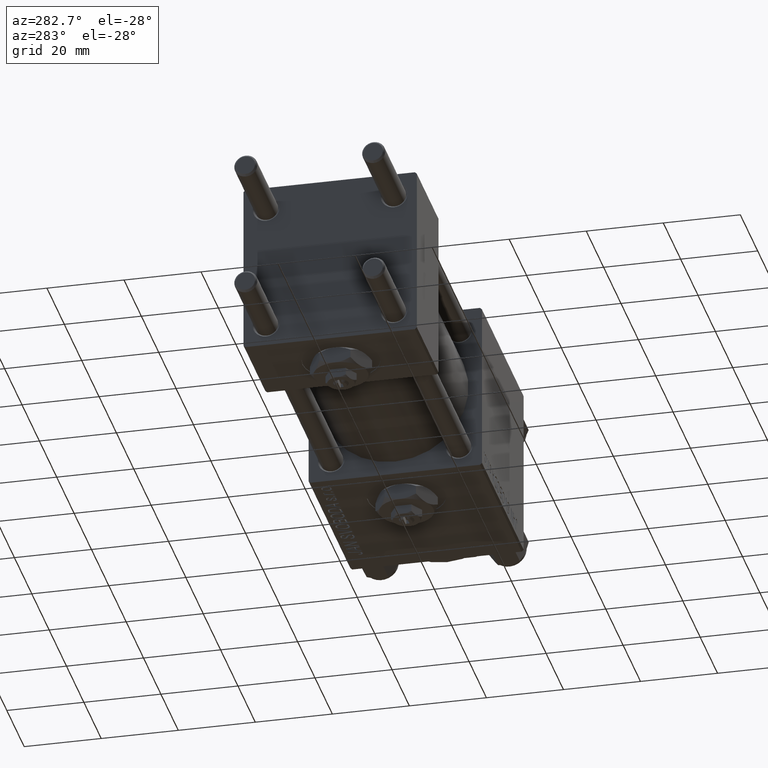
[diagram: clean part render]
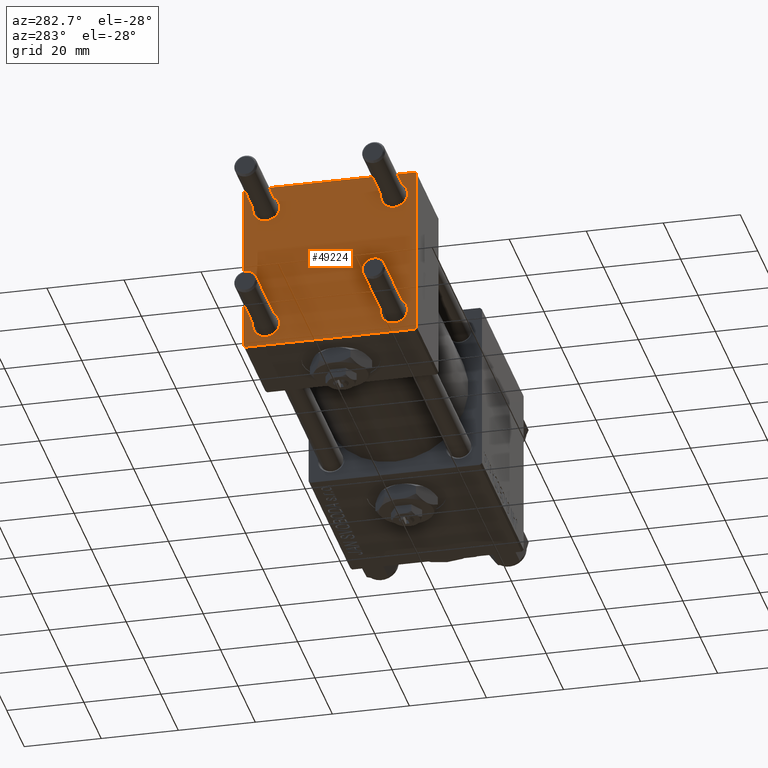
[diagram: same view with one face highlighted and labeled with its STEP entity id]
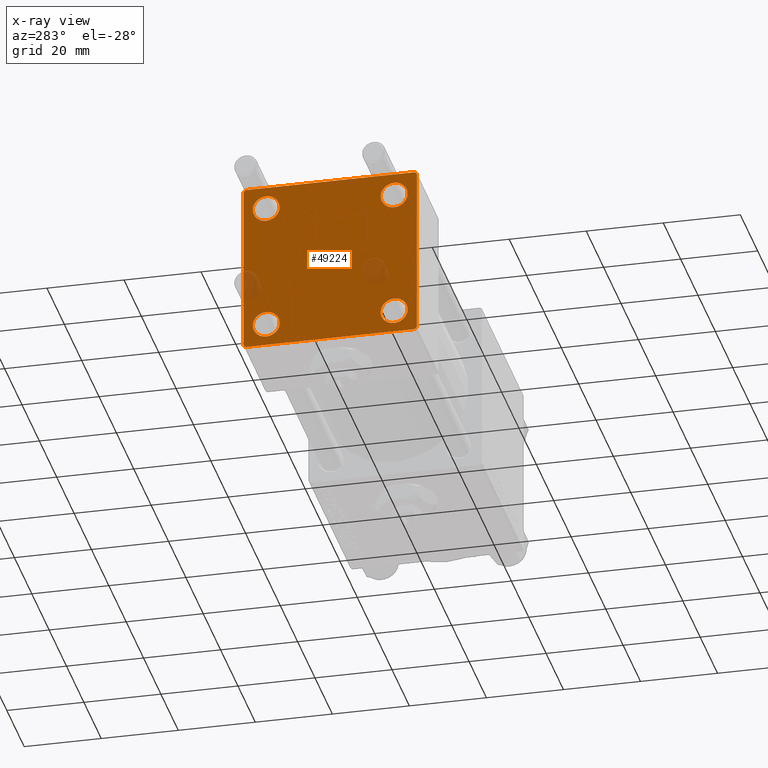
[diagram: x-ray of the same camera — body ghosted, the highlighted face saturated]
A machine part, auxiliary view. The second image highlights one B-rep face of the part: STEP entity #49224.
The next image is the same camera in x-ray: the body ghosted, the highlighted face saturated — about 4% of this face is hidden behind the body in this view.
In plain terms, the highlighted planar face has unit normal (-1, 0, 0).
Its self-contained STEP definition (entity closure, byte-faithful):
#23 = LINE ( 'NONE', #43976, #32634 ) ;
#133 = EDGE_LOOP ( 'NONE', ( #25173, #6282 ) ) ;
#413 = LINE ( 'NONE', #4363, #30988 ) ;
#447 = EDGE_CURVE ( 'NONE', #14596, #5556, #43361, .T. ) ;
#892 = AXIS2_PLACEMENT_3D ( 'NONE', #17188, #32455, #45087 ) ;
#947 = DIRECTION ( 'NONE',  ( 0.000000000000000000, -1.000000000000000000, -7.709882115452476934E-17 ) ) ;
#1204 = CARTESIAN_POINT ( 'NONE',  ( 0.000000000000000000, 22.50000000000000000, 22.50000000000000355 ) ) ;
#1450 = LINE ( 'NONE', #1204, #16965 ) ;
#1567 = DIRECTION ( 'NONE',  ( 1.000000000000000000, -0.000000000000000000, 0.000000000000000000 ) ) ;
#1657 = DIRECTION ( 'NONE',  ( 1.000000000000000000, -0.000000000000000000, 0.000000000000000000 ) ) ;
#2090 = CARTESIAN_POINT ( 'NONE',  ( 0.000000000000000000, 16.59999999999999787, 16.60000000000000497 ) ) ;
#2434 = DIRECTION ( 'NONE',  ( 1.000000000000000000, -0.000000000000000000, 0.000000000000000000 ) ) ;
#2527 = VERTEX_POINT ( 'NONE', #22155 ) ;
#3516 = ORIENTED_EDGE ( 'NONE', *, *, #46696, .T. ) ;
#3598 = DIRECTION ( 'NONE',  ( 1.000000000000000000, -0.000000000000000000, 0.000000000000000000 ) ) ;
#3715 = ORIENTED_EDGE ( 'NONE', *, *, #18187, .T. ) ;
#3819 = DIRECTION ( 'NONE',  ( -0.000000000000000000, -0.7071067811865426878, -0.7071067811865524577 ) ) ;
#4242 = EDGE_CURVE ( 'NONE', #44555, #6875, #21646, .T. ) ;
#4363 = CARTESIAN_POINT ( 'NONE',  ( 0.000000000000000000, 22.24999999999999645, 22.24999999999999645 ) ) ;
#4469 = CARTESIAN_POINT ( 'NONE',  ( 0.000000000000000000, 16.59999999999999787, 20.10000000000000142 ) ) ;
#4674 = CARTESIAN_POINT ( 'NONE',  ( 0.000000000000000000, 16.59999999999999787, -16.60000000000000497 ) ) ;
#5556 = VERTEX_POINT ( 'NONE', #42246 ) ;
#6102 = VECTOR ( 'NONE', #41949, 1000.000000000000000 ) ;
#6150 = LINE ( 'NONE', #22181, #37958 ) ;
#6282 = ORIENTED_EDGE ( 'NONE', *, *, #14732, .T. ) ;
#6399 = DIRECTION ( 'NONE',  ( 0.000000000000000000, -1.000000000000000000, -2.312964634635742957E-16 ) ) ;
#6554 = AXIS2_PLACEMENT_3D ( 'NONE', #51106, #2434, #39258 ) ;
#6875 = VERTEX_POINT ( 'NONE', #22944 ) ;
#7020 = CARTESIAN_POINT ( 'NONE',  ( 0.000000000000000000, 21.99999999999999289, -22.49999999999999645 ) ) ;
#8121 = FACE_BOUND ( 'NONE', #48248, .T. ) ;
#8485 = EDGE_LOOP ( 'NONE', ( #30654, #25627 ) ) ;
#8886 = DIRECTION ( 'NONE',  ( 0.000000000000000000, 0.000000000000000000, 1.000000000000000000 ) ) ;
#9310 = DIRECTION ( 'NONE',  ( 0.000000000000000000, 0.000000000000000000, 1.000000000000000000 ) ) ;
#9316 = VERTEX_POINT ( 'NONE', #29440 ) ;
#10493 = EDGE_CURVE ( 'NONE', #37804, #51012, #413, .T. ) ;
#10728 = DIRECTION ( 'NONE',  ( 0.000000000000000000, 0.000000000000000000, 1.000000000000000000 ) ) ;
#12014 = DIRECTION ( 'NONE',  ( 0.000000000000000000, 0.000000000000000000, 1.000000000000000000 ) ) ;
#12524 = ORIENTED_EDGE ( 'NONE', *, *, #41727, .T. ) ;
#12860 = DIRECTION ( 'NONE',  ( -0.000000000000000000, 0.000000000000000000, 1.000000000000000000 ) ) ;
#13235 = AXIS2_PLACEMENT_3D ( 'NONE', #14929, #34438, #10728 ) ;
#13829 = ORIENTED_EDGE ( 'NONE', *, *, #49773, .T. ) ;
#13868 = DIRECTION ( 'NONE',  ( 0.000000000000000000, 0.000000000000000000, -1.000000000000000000 ) ) ;
#14495 = CARTESIAN_POINT ( 'NONE',  ( 0.000000000000000000, -22.50000000000000000, 22.00000000000000000 ) ) ;
#14596 = VERTEX_POINT ( 'NONE', #4469 ) ;
#14732 = EDGE_CURVE ( 'NONE', #2527, #34606, #16590, .T. ) ;
#14929 = CARTESIAN_POINT ( 'NONE',  ( 0.000000000000000000, -16.59999999999999076, 16.60000000000000853 ) ) ;
#15185 = CARTESIAN_POINT ( 'NONE',  ( 0.000000000000000000, 16.59999999999999787, -16.60000000000000497 ) ) ;
#16015 = CIRCLE ( 'NONE', #892, 3.499999999999996003 ) ;
#16029 = VERTEX_POINT ( 'NONE', #44597 ) ;
#16086 = VECTOR ( 'NONE', #3819, 1000.000000000000000 ) ;
#16457 = DIRECTION ( 'NONE',  ( 0.000000000000000000, 0.7071067811865474617, -0.7071067811865474617 ) ) ;
#16543 = FACE_BOUND ( 'NONE', #8485, .T. ) ;
#16590 = CIRCLE ( 'NONE', #19078, 3.499999999999996003 ) ;
#16646 = VERTEX_POINT ( 'NONE', #23540 ) ;
#16965 = VECTOR ( 'NONE', #947, 1000.000000000000000 ) ;
#17074 = CARTESIAN_POINT ( 'NONE',  ( 0.000000000000000000, 0.000000000000000000, 0.000000000000000000 ) ) ;
#17188 = CARTESIAN_POINT ( 'NONE',  ( 0.000000000000000000, -16.59999999999999076, 16.60000000000000853 ) ) ;
#17525 = CARTESIAN_POINT ( 'NONE',  ( 0.000000000000000000, 16.59999999999999787, 16.60000000000000497 ) ) ;
#17594 = AXIS2_PLACEMENT_3D ( 'NONE', #17525, #33329, #20695 ) ;
#17818 = EDGE_CURVE ( 'NONE', #40522, #16029, #23, .T. ) ;
#18185 = CARTESIAN_POINT ( 'NONE',  ( 0.000000000000000000, -16.59999999999999076, 20.10000000000000853 ) ) ;
#18187 = EDGE_CURVE ( 'NONE', #51012, #31360, #32598, .T. ) ;
#19078 = AXIS2_PLACEMENT_3D ( 'NONE', #15185, #3598, #12014 ) ;
#19232 = DIRECTION ( 'NONE',  ( -0.000000000000000000, 0.7071067811865525687, 0.7071067811865425767 ) ) ;
#19616 = EDGE_CURVE ( 'NONE', #45000, #16646, #25792, .T. ) ;
#20336 = ORIENTED_EDGE ( 'NONE', *, *, #10493, .T. ) ;
#20695 = DIRECTION ( 'NONE',  ( 0.000000000000000000, 0.000000000000000000, 1.000000000000000000 ) ) ;
#21350 = EDGE_LOOP ( 'NONE', ( #13829, #46740 ) ) ;
#21512 = EDGE_CURVE ( 'NONE', #40522, #9316, #42352, .T. ) ;
#21646 = CIRCLE ( 'NONE', #6554, 3.499999999999996003 ) ;
#21683 = CARTESIAN_POINT ( 'NONE',  ( 0.000000000000000000, 22.50000000000000000, 21.99999999999999645 ) ) ;
#22071 = CARTESIAN_POINT ( 'NONE',  ( 0.000000000000000000, 16.59999999999999787, -13.10000000000000675 ) ) ;
#22155 = CARTESIAN_POINT ( 'NONE',  ( 0.000000000000000000, 16.59999999999999787, -20.10000000000000142 ) ) ;
#22181 = CARTESIAN_POINT ( 'NONE',  ( 0.000000000000000000, 22.50000000000000000, -22.49999999999999645 ) ) ;
#22625 = VERTEX_POINT ( 'NONE', #7020 ) ;
#22944 = CARTESIAN_POINT ( 'NONE',  ( 0.000000000000000000, -16.59999999999999076, -13.10000000000001030 ) ) ;
#23540 = CARTESIAN_POINT ( 'NONE',  ( 0.000000000000000000, -16.59999999999999076, 13.10000000000001030 ) ) ;
#23651 = EDGE_CURVE ( 'NONE', #5556, #14596, #31854, .T. ) ;
#24099 = CARTESIAN_POINT ( 'NONE',  ( 0.000000000000000000, 21.99999999999999289, 22.50000000000000355 ) ) ;
#25173 = ORIENTED_EDGE ( 'NONE', *, *, #33633, .T. ) ;
#25570 = ORIENTED_EDGE ( 'NONE', *, *, #21512, .F. ) ;
#25627 = ORIENTED_EDGE ( 'NONE', *, *, #23651, .T. ) ;
#25697 = AXIS2_PLACEMENT_3D ( 'NONE', #2090, #1567, #45022 ) ;
#25792 = CIRCLE ( 'NONE', #13235, 3.499999999999996003 ) ;
#25892 = CARTESIAN_POINT ( 'NONE',  ( 0.000000000000000000, -22.25000000000014566, -22.24999999999984013 ) ) ;
#26462 = VERTEX_POINT ( 'NONE', #33628 ) ;
#27027 = CIRCLE ( 'NONE', #27858, 3.499999999999996003 ) ;
#27858 = AXIS2_PLACEMENT_3D ( 'NONE', #4674, #28339, #8886 ) ;
#27900 = AXIS2_PLACEMENT_3D ( 'NONE', #17074, #40232, #12860 ) ;
#28339 = DIRECTION ( 'NONE',  ( 1.000000000000000000, -0.000000000000000000, 0.000000000000000000 ) ) ;
#28792 = EDGE_CURVE ( 'NONE', #31360, #22625, #47020, .T. ) ;
#29440 = CARTESIAN_POINT ( 'NONE',  ( 0.000000000000000000, -22.50000000000000000, -21.99999999999997158 ) ) ;
#30178 = CARTESIAN_POINT ( 'NONE',  ( 0.000000000000000000, 22.50000000000000000, 22.50000000000000355 ) ) ;
#30654 = ORIENTED_EDGE ( 'NONE', *, *, #447, .T. ) ;
#30988 = VECTOR ( 'NONE', #16457, 1000.000000000000114 ) ;
#31360 = VERTEX_POINT ( 'NONE', #49068 ) ;
#31854 = CIRCLE ( 'NONE', #17594, 3.499999999999996003 ) ;
#32455 = DIRECTION ( 'NONE',  ( 1.000000000000000000, -0.000000000000000000, 0.000000000000000000 ) ) ;
#32543 = ORIENTED_EDGE ( 'NONE', *, *, #17818, .T. ) ;
#32598 = LINE ( 'NONE', #30178, #38410 ) ;
#32634 = VECTOR ( 'NONE', #19232, 999.9999999999998863 ) ;
#33329 = DIRECTION ( 'NONE',  ( 1.000000000000000000, -0.000000000000000000, 0.000000000000000000 ) ) ;
#33628 = CARTESIAN_POINT ( 'NONE',  ( 0.000000000000000000, -21.99999999999997158, -22.50000000000000711 ) ) ;
#33633 = EDGE_CURVE ( 'NONE', #34606, #2527, #27027, .T. ) ;
#34438 = DIRECTION ( 'NONE',  ( 1.000000000000000000, -0.000000000000000000, 0.000000000000000000 ) ) ;
#34606 = VERTEX_POINT ( 'NONE', #22071 ) ;
#35175 = VECTOR ( 'NONE', #42858, 1000.000000000000000 ) ;
#37235 = CARTESIAN_POINT ( 'NONE',  ( 0.000000000000000000, -16.59999999999999076, -20.10000000000000497 ) ) ;
#37804 = VERTEX_POINT ( 'NONE', #24099 ) ;
#37958 = VECTOR ( 'NONE', #6399, 1000.000000000000000 ) ;
#38410 = VECTOR ( 'NONE', #13868, 1000.000000000000000 ) ;
#39258 = DIRECTION ( 'NONE',  ( 0.000000000000000000, 0.000000000000000000, 1.000000000000000000 ) ) ;
#40232 = DIRECTION ( 'NONE',  ( -1.000000000000000000, 0.000000000000000000, -0.000000000000000000 ) ) ;
#40522 = VERTEX_POINT ( 'NONE', #14495 ) ;
#41147 = CARTESIAN_POINT ( 'NONE',  ( 0.000000000000000000, -16.59999999999999076, -16.60000000000000853 ) ) ;
#41727 = EDGE_CURVE ( 'NONE', #16646, #45000, #16015, .T. ) ;
#41949 = DIRECTION ( 'NONE',  ( 0.000000000000000000, -0.7071067811865426878, 0.7071067811865524577 ) ) ;
#42246 = CARTESIAN_POINT ( 'NONE',  ( 0.000000000000000000, 16.59999999999999787, 13.10000000000000675 ) ) ;
#42352 = LINE ( 'NONE', #42602, #35175 ) ;
#42520 = ORIENTED_EDGE ( 'NONE', *, *, #48775, .F. ) ;
#42602 = CARTESIAN_POINT ( 'NONE',  ( 0.000000000000000000, -22.50000000000000000, 22.50000000000000000 ) ) ;
#42691 = ORIENTED_EDGE ( 'NONE', *, *, #28792, .T. ) ;
#42858 = DIRECTION ( 'NONE',  ( 0.000000000000000000, 0.000000000000000000, -1.000000000000000000 ) ) ;
#43361 = CIRCLE ( 'NONE', #25697, 3.499999999999996003 ) ;
#43879 = CIRCLE ( 'NONE', #51425, 3.499999999999996003 ) ;
#43976 = CARTESIAN_POINT ( 'NONE',  ( -0.000000000000000000, -22.24999999999984013, 22.25000000000015277 ) ) ;
#44176 = PLANE ( 'NONE',  #27900 ) ;
#44555 = VERTEX_POINT ( 'NONE', #37235 ) ;
#44597 = CARTESIAN_POINT ( 'NONE',  ( 0.000000000000000000, -21.99999999999997868, 22.50000000000000000 ) ) ;
#44711 = EDGE_CURVE ( 'NONE', #22625, #26462, #6150, .T. ) ;
#44979 = FACE_OUTER_BOUND ( 'NONE', #49180, .T. ) ;
#45000 = VERTEX_POINT ( 'NONE', #18185 ) ;
#45022 = DIRECTION ( 'NONE',  ( 0.000000000000000000, 0.000000000000000000, 1.000000000000000000 ) ) ;
#45087 = DIRECTION ( 'NONE',  ( 0.000000000000000000, 0.000000000000000000, 1.000000000000000000 ) ) ;
#45233 = FACE_BOUND ( 'NONE', #133, .T. ) ;
#45921 = LINE ( 'NONE', #25892, #6102 ) ;
#46696 = EDGE_CURVE ( 'NONE', #26462, #9316, #45921, .T. ) ;
#46740 = ORIENTED_EDGE ( 'NONE', *, *, #4242, .T. ) ;
#47020 = LINE ( 'NONE', #47533, #16086 ) ;
#47533 = CARTESIAN_POINT ( 'NONE',  ( 0.000000000000000000, 22.25000000000014566, -22.24999999999984013 ) ) ;
#48142 = FACE_BOUND ( 'NONE', #21350, .T. ) ;
#48248 = EDGE_LOOP ( 'NONE', ( #50492, #12524 ) ) ;
#48433 = ORIENTED_EDGE ( 'NONE', *, *, #44711, .T. ) ;
#48775 = EDGE_CURVE ( 'NONE', #37804, #16029, #1450, .T. ) ;
#49068 = CARTESIAN_POINT ( 'NONE',  ( 0.000000000000000000, 22.50000000000000000, -21.99999999999996803 ) ) ;
#49180 = EDGE_LOOP ( 'NONE', ( #3715, #42691, #48433, #3516, #25570, #32543, #42520, #20336 ) ) ;
#49224 = ADVANCED_FACE ( 'NONE', ( #8121, #48142, #45233, #16543, #44979 ), #44176, .T. ) ;
#49773 = EDGE_CURVE ( 'NONE', #6875, #44555, #43879, .T. ) ;
#50492 = ORIENTED_EDGE ( 'NONE', *, *, #19616, .T. ) ;
#51012 = VERTEX_POINT ( 'NONE', #21683 ) ;
#51106 = CARTESIAN_POINT ( 'NONE',  ( 0.000000000000000000, -16.59999999999999076, -16.60000000000000853 ) ) ;
#51425 = AXIS2_PLACEMENT_3D ( 'NONE', #41147, #1657, #9310 ) ;